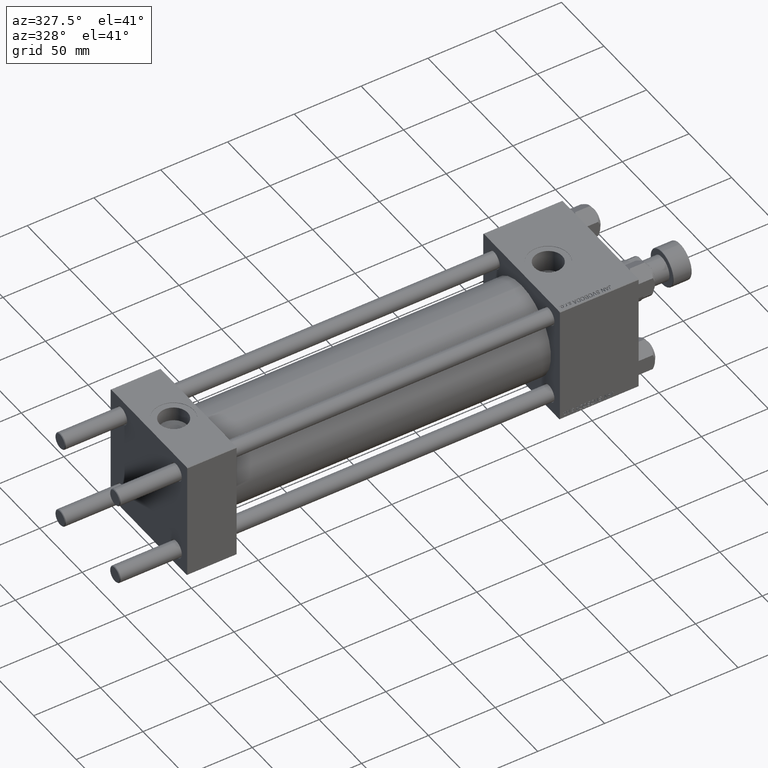
[diagram: clean part render]
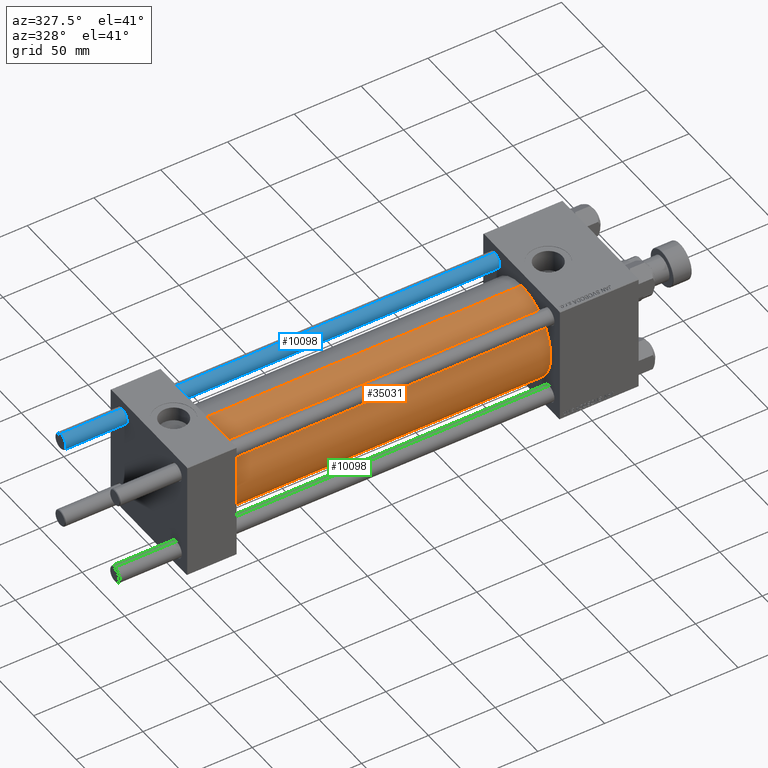
[diagram: same view with three faces highlighted in distinct colors, each labeled with its STEP entity id]
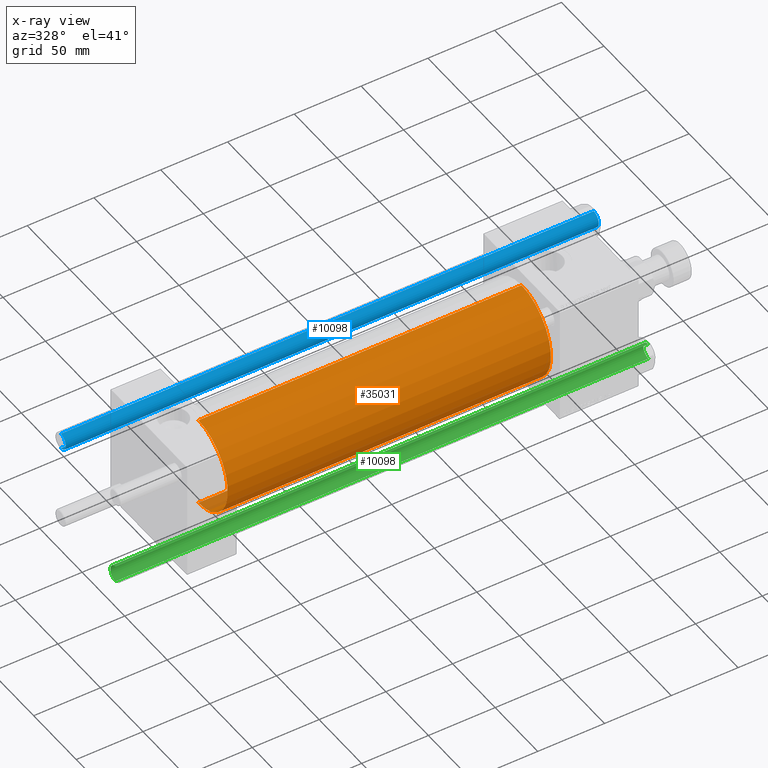
[diagram: x-ray of the same camera — body ghosted, the three highlighted faces saturated]
A machine part, auxiliary view with three faces highlighted in distinct colors.
The next image is the same camera in x-ray (body ghosted, the three faces saturated) — at least one of them is partly hidden behind the body in this view.
Their STEP definitions:

[orange] entity #35031 — the highlighted cylindrical surface (partial cylindrical patch) has radius 34.5 mm, axis along (-1, -0, -0).
#625 = CARTESIAN_POINT ( 'NONE',  ( 278.9999999999999432, 0.000000000000000000, 34.49999999999999289 ) ) ;
#1684 = CARTESIAN_POINT ( 'NONE',  ( 278.9999999999999432, 4.225031457058367344E-15, -34.49999999999999289 ) ) ;
#1931 = DIRECTION ( 'NONE',  ( 0.000000000000000000, 0.000000000000000000, 1.000000000000000000 ) ) ;
#2375 = VECTOR ( 'NONE', #7609, 1000.000000000000000 ) ;
#4721 = VERTEX_POINT ( 'NONE', #19146 ) ;
#5766 = CARTESIAN_POINT ( 'NONE',  ( 278.9999999999999432, 0.000000000000000000, 0.000000000000000000 ) ) ;
#6016 = CYLINDRICAL_SURFACE ( 'NONE', #12916, 34.49999999999999289 ) ;
#7079 = EDGE_CURVE ( 'NONE', #49447, #4721, #47164, .T. ) ;
#7297 = CARTESIAN_POINT ( 'NONE',  ( 37.00000000000000711, 0.000000000000000000, 34.49999999999999289 ) ) ;
#7609 = DIRECTION ( 'NONE',  ( -1.000000000000000000, -0.000000000000000000, -0.000000000000000000 ) ) ;
#9599 = ORIENTED_EDGE ( 'NONE', *, *, #31096, .T. ) ;
#10163 = CARTESIAN_POINT ( 'NONE',  ( 278.9999999999999432, 4.225031457058367344E-15, -34.49999999999999289 ) ) ;
#12538 = CARTESIAN_POINT ( 'NONE',  ( 37.00000000000000711, 0.000000000000000000, 0.000000000000000000 ) ) ;
#12916 = AXIS2_PLACEMENT_3D ( 'NONE', #5766, #40794, #1931 ) ;
#17776 = ORIENTED_EDGE ( 'NONE', *, *, #7079, .F. ) ;
#19146 = CARTESIAN_POINT ( 'NONE',  ( 37.00000000000000711, 4.225031457058367344E-15, -34.49999999999999289 ) ) ;
#19688 = CARTESIAN_POINT ( 'NONE',  ( 278.9999999999999432, 0.000000000000000000, 0.000000000000000000 ) ) ;
#20213 = EDGE_LOOP ( 'NONE', ( #17776, #29387, #49161, #9599 ) ) ;
#23428 = AXIS2_PLACEMENT_3D ( 'NONE', #12538, #46586, #23964 ) ;
#23964 = DIRECTION ( 'NONE',  ( 0.000000000000000000, 0.000000000000000000, 1.000000000000000000 ) ) ;
#24990 = CIRCLE ( 'NONE', #46096, 34.49999999999999289 ) ;
#25061 = CIRCLE ( 'NONE', #23428, 34.49999999999999289 ) ;
#26249 = VERTEX_POINT ( 'NONE', #625 ) ;
#27296 = DIRECTION ( 'NONE',  ( 1.000000000000000000, 0.000000000000000000, 0.000000000000000000 ) ) ;
#28070 = EDGE_CURVE ( 'NONE', #26249, #49447, #24990, .T. ) ;
#29387 = ORIENTED_EDGE ( 'NONE', *, *, #28070, .F. ) ;
#30354 = EDGE_CURVE ( 'NONE', #26249, #38570, #34268, .T. ) ;
#31096 = EDGE_CURVE ( 'NONE', #38570, #4721, #25061, .T. ) ;
#34268 = LINE ( 'NONE', #42136, #2375 ) ;
#35031 = ADVANCED_FACE ( 'NONE', ( #41045 ), #6016, .T. ) ;
#36125 = VECTOR ( 'NONE', #44342, 1000.000000000000000 ) ;
#38570 = VERTEX_POINT ( 'NONE', #7297 ) ;
#40794 = DIRECTION ( 'NONE',  ( -1.000000000000000000, -0.000000000000000000, -0.000000000000000000 ) ) ;
#41045 = FACE_OUTER_BOUND ( 'NONE', #20213, .T. ) ;
#42136 = CARTESIAN_POINT ( 'NONE',  ( 278.9999999999999432, 0.000000000000000000, 34.49999999999999289 ) ) ;
#44342 = DIRECTION ( 'NONE',  ( -1.000000000000000000, -0.000000000000000000, -0.000000000000000000 ) ) ;
#46096 = AXIS2_PLACEMENT_3D ( 'NONE', #19688, #27296, #49267 ) ;
#46586 = DIRECTION ( 'NONE',  ( 1.000000000000000000, -0.000000000000000000, 0.000000000000000000 ) ) ;
#47164 = LINE ( 'NONE', #1684, #36125 ) ;
#49161 = ORIENTED_EDGE ( 'NONE', *, *, #30354, .T. ) ;
#49267 = DIRECTION ( 'NONE',  ( 0.000000000000000000, 0.000000000000000000, -1.000000000000000000 ) ) ;
#49447 = VERTEX_POINT ( 'NONE', #10163 ) ;

[blue] entity #10098 — the highlighted cylindrical surface (edge-blend (fillet) strip) has radius 6 mm, axis along (-1, -0, -0).
#448 = VERTEX_POINT ( 'NONE', #45012 ) ;
#512 = AXIS2_PLACEMENT_3D ( 'NONE', #50174, #46354, #8256 ) ;
#2069 = DIRECTION ( 'NONE',  ( 1.000000000000000000, 0.000000000000000000, 0.000000000000000000 ) ) ;
#2570 = ORIENTED_EDGE ( 'NONE', *, *, #16203, .T. ) ;
#2751 = AXIS2_PLACEMENT_3D ( 'NONE', #12993, #43968, #2069 ) ;
#3786 = CARTESIAN_POINT ( 'NONE',  ( -6.000000000000000888, 0.000000000000000000, 399.5000000000000000 ) ) ;
#8256 = DIRECTION ( 'NONE',  ( -1.000000000000000000, 0.000000000000000000, 0.000000000000000000 ) ) ;
#10098 = ADVANCED_FACE ( 'NONE', ( #42534 ), #11805, .T. ) ;
#10707 = CARTESIAN_POINT ( 'NONE',  ( -6.000000000000000888, 0.000000000000000000, 400.0000000000000000 ) ) ;
#11805 = CYLINDRICAL_SURFACE ( 'NONE', #512, 6.000000000000000888 ) ;
#12993 = CARTESIAN_POINT ( 'NONE',  ( 0.000000000000000000, 0.000000000000000000, 0.5000000000000004441 ) ) ;
#16203 = EDGE_CURVE ( 'NONE', #37288, #448, #33679, .T. ) ;
#18242 = CARTESIAN_POINT ( 'NONE',  ( 6.000000000000000888, 7.347880794884120722E-16, 399.5000000000000000 ) ) ;
#20446 = EDGE_CURVE ( 'NONE', #28883, #37288, #30234, .T. ) ;
#20483 = CIRCLE ( 'NONE', #32666, 6.000000000000000888 ) ;
#22616 = EDGE_LOOP ( 'NONE', ( #24108, #43980, #39637, #2570 ) ) ;
#24108 = ORIENTED_EDGE ( 'NONE', *, *, #39255, .F. ) ;
#25178 = CARTESIAN_POINT ( 'NONE',  ( 0.000000000000000000, 0.000000000000000000, 399.5000000000000000 ) ) ;
#26456 = CARTESIAN_POINT ( 'NONE',  ( 6.000000000000000888, 7.347880794884120722E-16, 400.0000000000000000 ) ) ;
#28883 = VERTEX_POINT ( 'NONE', #3786 ) ;
#29988 = DIRECTION ( 'NONE',  ( -0.000000000000000000, -0.000000000000000000, -1.000000000000000000 ) ) ;
#30234 = LINE ( 'NONE', #10707, #43366 ) ;
#32666 = AXIS2_PLACEMENT_3D ( 'NONE', #25178, #33812, #37864 ) ;
#33506 = VERTEX_POINT ( 'NONE', #18242 ) ;
#33679 = CIRCLE ( 'NONE', #2751, 6.000000000000000888 ) ;
#33812 = DIRECTION ( 'NONE',  ( 0.000000000000000000, 0.000000000000000000, -1.000000000000000000 ) ) ;
#36940 = CARTESIAN_POINT ( 'NONE',  ( -6.000000000000000888, 0.000000000000000000, 0.5000000000000004441 ) ) ;
#37288 = VERTEX_POINT ( 'NONE', #36940 ) ;
#37424 = VECTOR ( 'NONE', #42200, 1000.000000000000000 ) ;
#37864 = DIRECTION ( 'NONE',  ( 1.000000000000000000, 0.000000000000000000, 0.000000000000000000 ) ) ;
#39255 = EDGE_CURVE ( 'NONE', #33506, #448, #46018, .T. ) ;
#39637 = ORIENTED_EDGE ( 'NONE', *, *, #20446, .T. ) ;
#42200 = DIRECTION ( 'NONE',  ( -0.000000000000000000, -0.000000000000000000, -1.000000000000000000 ) ) ;
#42534 = FACE_OUTER_BOUND ( 'NONE', #22616, .T. ) ;
#42743 = EDGE_CURVE ( 'NONE', #33506, #28883, #20483, .T. ) ;
#43366 = VECTOR ( 'NONE', #29988, 1000.000000000000000 ) ;
#43968 = DIRECTION ( 'NONE',  ( -0.000000000000000000, -0.000000000000000000, 1.000000000000000000 ) ) ;
#43980 = ORIENTED_EDGE ( 'NONE', *, *, #42743, .T. ) ;
#45012 = CARTESIAN_POINT ( 'NONE',  ( 6.000000000000000888, 7.347880794884120722E-16, 0.5000000000000004441 ) ) ;
#46018 = LINE ( 'NONE', #26456, #37424 ) ;
#46354 = DIRECTION ( 'NONE',  ( -0.000000000000000000, -0.000000000000000000, -1.000000000000000000 ) ) ;
#50174 = CARTESIAN_POINT ( 'NONE',  ( 0.000000000000000000, 0.000000000000000000, 400.0000000000000000 ) ) ;

[green] entity #10098 — the highlighted cylindrical surface (edge-blend (fillet) strip) has radius 6 mm, axis along (-1, 0, 0).
#448 = VERTEX_POINT ( 'NONE', #45012 ) ;
#512 = AXIS2_PLACEMENT_3D ( 'NONE', #50174, #46354, #8256 ) ;
#2069 = DIRECTION ( 'NONE',  ( 1.000000000000000000, 0.000000000000000000, 0.000000000000000000 ) ) ;
#2570 = ORIENTED_EDGE ( 'NONE', *, *, #16203, .T. ) ;
#2751 = AXIS2_PLACEMENT_3D ( 'NONE', #12993, #43968, #2069 ) ;
#3786 = CARTESIAN_POINT ( 'NONE',  ( -6.000000000000000888, 0.000000000000000000, 399.5000000000000000 ) ) ;
#8256 = DIRECTION ( 'NONE',  ( -1.000000000000000000, 0.000000000000000000, 0.000000000000000000 ) ) ;
#10098 = ADVANCED_FACE ( 'NONE', ( #42534 ), #11805, .T. ) ;
#10707 = CARTESIAN_POINT ( 'NONE',  ( -6.000000000000000888, 0.000000000000000000, 400.0000000000000000 ) ) ;
#11805 = CYLINDRICAL_SURFACE ( 'NONE', #512, 6.000000000000000888 ) ;
#12993 = CARTESIAN_POINT ( 'NONE',  ( 0.000000000000000000, 0.000000000000000000, 0.5000000000000004441 ) ) ;
#16203 = EDGE_CURVE ( 'NONE', #37288, #448, #33679, .T. ) ;
#18242 = CARTESIAN_POINT ( 'NONE',  ( 6.000000000000000888, 7.347880794884120722E-16, 399.5000000000000000 ) ) ;
#20446 = EDGE_CURVE ( 'NONE', #28883, #37288, #30234, .T. ) ;
#20483 = CIRCLE ( 'NONE', #32666, 6.000000000000000888 ) ;
#22616 = EDGE_LOOP ( 'NONE', ( #24108, #43980, #39637, #2570 ) ) ;
#24108 = ORIENTED_EDGE ( 'NONE', *, *, #39255, .F. ) ;
#25178 = CARTESIAN_POINT ( 'NONE',  ( 0.000000000000000000, 0.000000000000000000, 399.5000000000000000 ) ) ;
#26456 = CARTESIAN_POINT ( 'NONE',  ( 6.000000000000000888, 7.347880794884120722E-16, 400.0000000000000000 ) ) ;
#28883 = VERTEX_POINT ( 'NONE', #3786 ) ;
#29988 = DIRECTION ( 'NONE',  ( -0.000000000000000000, -0.000000000000000000, -1.000000000000000000 ) ) ;
#30234 = LINE ( 'NONE', #10707, #43366 ) ;
#32666 = AXIS2_PLACEMENT_3D ( 'NONE', #25178, #33812, #37864 ) ;
#33506 = VERTEX_POINT ( 'NONE', #18242 ) ;
#33679 = CIRCLE ( 'NONE', #2751, 6.000000000000000888 ) ;
#33812 = DIRECTION ( 'NONE',  ( 0.000000000000000000, 0.000000000000000000, -1.000000000000000000 ) ) ;
#36940 = CARTESIAN_POINT ( 'NONE',  ( -6.000000000000000888, 0.000000000000000000, 0.5000000000000004441 ) ) ;
#37288 = VERTEX_POINT ( 'NONE', #36940 ) ;
#37424 = VECTOR ( 'NONE', #42200, 1000.000000000000000 ) ;
#37864 = DIRECTION ( 'NONE',  ( 1.000000000000000000, 0.000000000000000000, 0.000000000000000000 ) ) ;
#39255 = EDGE_CURVE ( 'NONE', #33506, #448, #46018, .T. ) ;
#39637 = ORIENTED_EDGE ( 'NONE', *, *, #20446, .T. ) ;
#42200 = DIRECTION ( 'NONE',  ( -0.000000000000000000, -0.000000000000000000, -1.000000000000000000 ) ) ;
#42534 = FACE_OUTER_BOUND ( 'NONE', #22616, .T. ) ;
#42743 = EDGE_CURVE ( 'NONE', #33506, #28883, #20483, .T. ) ;
#43366 = VECTOR ( 'NONE', #29988, 1000.000000000000000 ) ;
#43968 = DIRECTION ( 'NONE',  ( -0.000000000000000000, -0.000000000000000000, 1.000000000000000000 ) ) ;
#43980 = ORIENTED_EDGE ( 'NONE', *, *, #42743, .T. ) ;
#45012 = CARTESIAN_POINT ( 'NONE',  ( 6.000000000000000888, 7.347880794884120722E-16, 0.5000000000000004441 ) ) ;
#46018 = LINE ( 'NONE', #26456, #37424 ) ;
#46354 = DIRECTION ( 'NONE',  ( -0.000000000000000000, -0.000000000000000000, -1.000000000000000000 ) ) ;
#50174 = CARTESIAN_POINT ( 'NONE',  ( 0.000000000000000000, 0.000000000000000000, 400.0000000000000000 ) ) ;